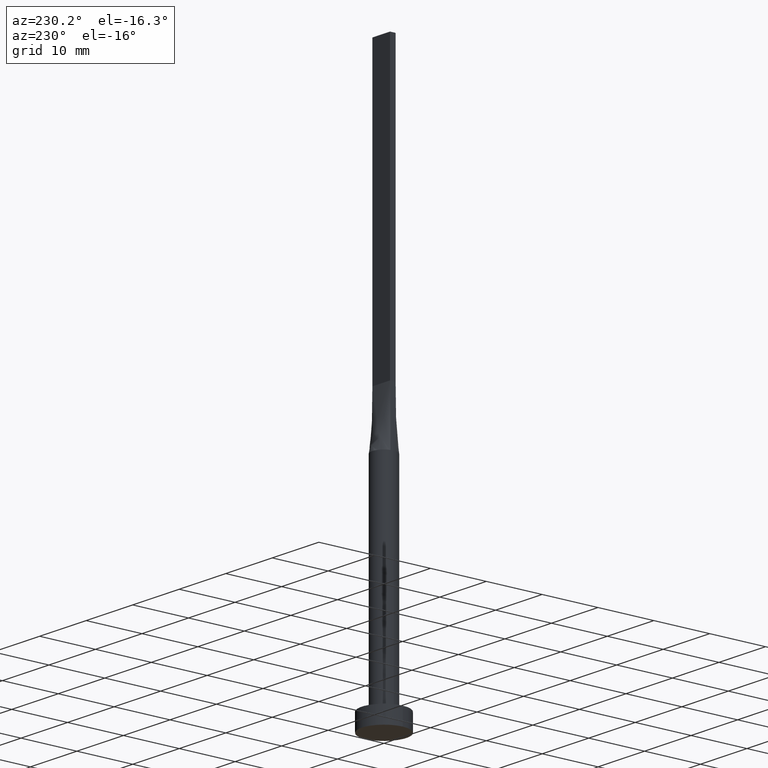
[diagram: clean part render]
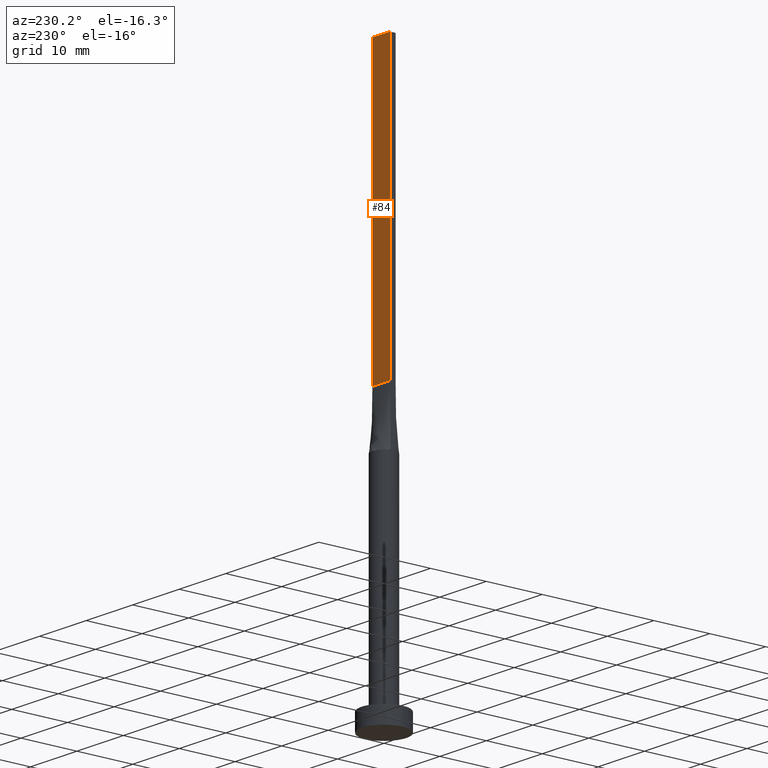
[diagram: same view with one face highlighted and labeled with its STEP entity id]
A machine part, auxiliary view. The second image highlights one B-rep face of the part: STEP entity #84.
In plain terms, the highlighted planar face has unit normal (0, -1, 0).
Its self-contained STEP definition (entity closure, byte-faithful):
#49 = VERTEX_POINT ( 'NONE', #568 ) ;
#84 = ADVANCED_FACE ( 'NONE', ( #193 ), #526, .F. ) ;
#93 = LINE ( 'NONE', #557, #319 ) ;
#96 = ORIENTED_EDGE ( 'NONE', *, *, #183, .F. ) ;
#121 = CARTESIAN_POINT ( 'NONE',  ( -1.899999999999999689, 0.5000000000000002220, 100.0000000000000000 ) ) ;
#151 = DIRECTION ( 'NONE',  ( 0.000000000000000000, -0.000000000000000000, -1.000000000000000000 ) ) ;
#163 = CARTESIAN_POINT ( 'NONE',  ( -1.899999999999999689, 0.5000000000000002220, 50.00000000000000000 ) ) ;
#183 = EDGE_CURVE ( 'NONE', #420, #506, #202, .T. ) ;
#193 = FACE_OUTER_BOUND ( 'NONE', #367, .T. ) ;
#199 = LINE ( 'NONE', #163, #494 ) ;
#202 = LINE ( 'NONE', #286, #577 ) ;
#236 = EDGE_CURVE ( 'NONE', #506, #49, #363, .T. ) ;
#286 = CARTESIAN_POINT ( 'NONE',  ( 1.899999999999999689, 0.5000000000000002220, 100.0000000000000000 ) ) ;
#309 = ORIENTED_EDGE ( 'NONE', *, *, #384, .T. ) ;
#319 = VECTOR ( 'NONE', #419, 1000.000000000000000 ) ;
#332 = CARTESIAN_POINT ( 'NONE',  ( -1.899999999999999689, 0.5000000000000002220, 100.0000000000000000 ) ) ;
#357 = DIRECTION ( 'NONE',  ( -0.000000000000000000, -0.000000000000000000, -1.000000000000000000 ) ) ;
#363 = LINE ( 'NONE', #121, #505 ) ;
#367 = EDGE_LOOP ( 'NONE', ( #309, #492, #96, #507 ) ) ;
#376 = EDGE_CURVE ( 'NONE', #420, #408, #93, .T. ) ;
#381 = CARTESIAN_POINT ( 'NONE',  ( 1.899999999999999689, 0.5000000000000002220, 100.0000000000000000 ) ) ;
#384 = EDGE_CURVE ( 'NONE', #408, #49, #199, .T. ) ;
#387 = CARTESIAN_POINT ( 'NONE',  ( 1.899999999999999689, 0.5000000000000002220, 50.00000000000000000 ) ) ;
#389 = DIRECTION ( 'NONE',  ( -1.000000000000000000, 0.000000000000000000, 0.000000000000000000 ) ) ;
#408 = VERTEX_POINT ( 'NONE', #387 ) ;
#419 = DIRECTION ( 'NONE',  ( -0.000000000000000000, -0.000000000000000000, -1.000000000000000000 ) ) ;
#420 = VERTEX_POINT ( 'NONE', #464 ) ;
#434 = DIRECTION ( 'NONE',  ( -1.000000000000000000, -0.000000000000000000, -0.000000000000000000 ) ) ;
#464 = CARTESIAN_POINT ( 'NONE',  ( 1.899999999999999689, 0.5000000000000002220, 100.0000000000000000 ) ) ;
#492 = ORIENTED_EDGE ( 'NONE', *, *, #236, .F. ) ;
#494 = VECTOR ( 'NONE', #434, 1000.000000000000000 ) ;
#505 = VECTOR ( 'NONE', #357, 1000.000000000000000 ) ;
#506 = VERTEX_POINT ( 'NONE', #332 ) ;
#507 = ORIENTED_EDGE ( 'NONE', *, *, #376, .T. ) ;
#517 = DIRECTION ( 'NONE',  ( 0.000000000000000000, -1.000000000000000000, 0.000000000000000000 ) ) ;
#526 = PLANE ( 'NONE',  #551 ) ;
#551 = AXIS2_PLACEMENT_3D ( 'NONE', #381, #517, #151 ) ;
#557 = CARTESIAN_POINT ( 'NONE',  ( 1.899999999999999689, 0.5000000000000002220, 100.0000000000000000 ) ) ;
#568 = CARTESIAN_POINT ( 'NONE',  ( -1.899999999999999689, 0.5000000000000002220, 50.00000000000000000 ) ) ;
#577 = VECTOR ( 'NONE', #389, 1000.000000000000000 ) ;